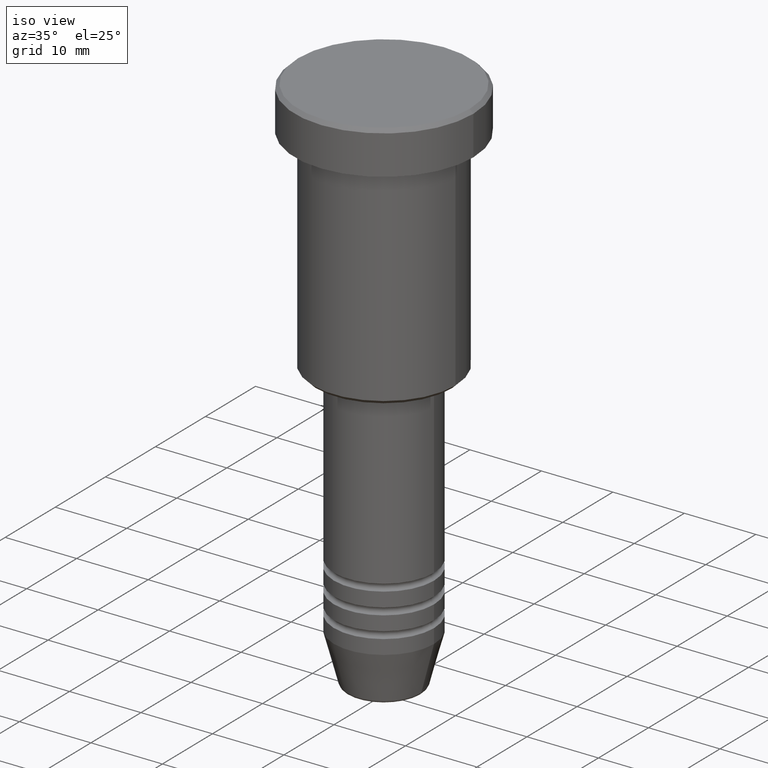
[diagram: clean part render]
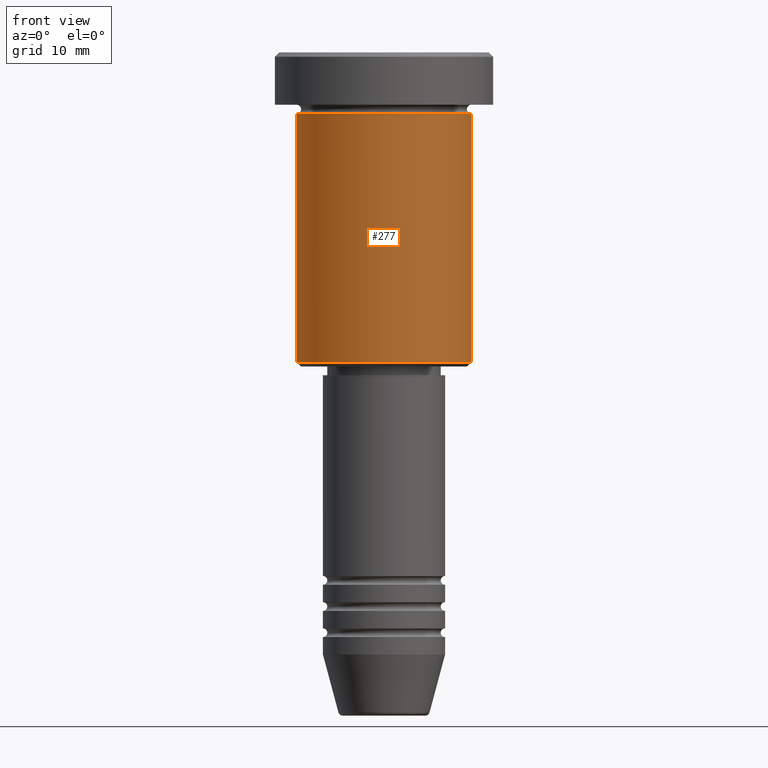
[diagram: tour spotlight — one face highlighted and labeled with its STEP entity id]
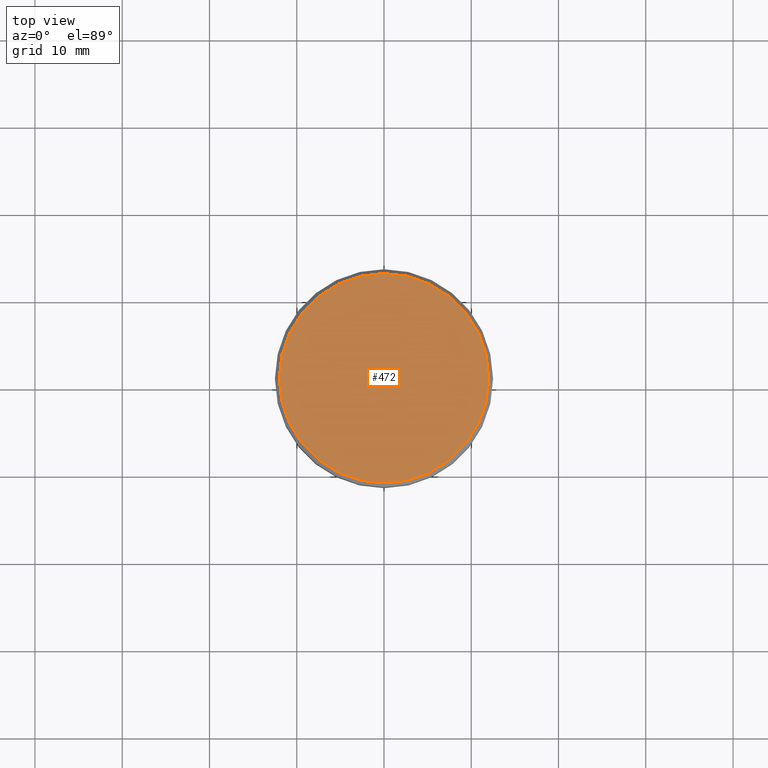
[diagram: tour spotlight — one face highlighted and labeled with its STEP entity id]
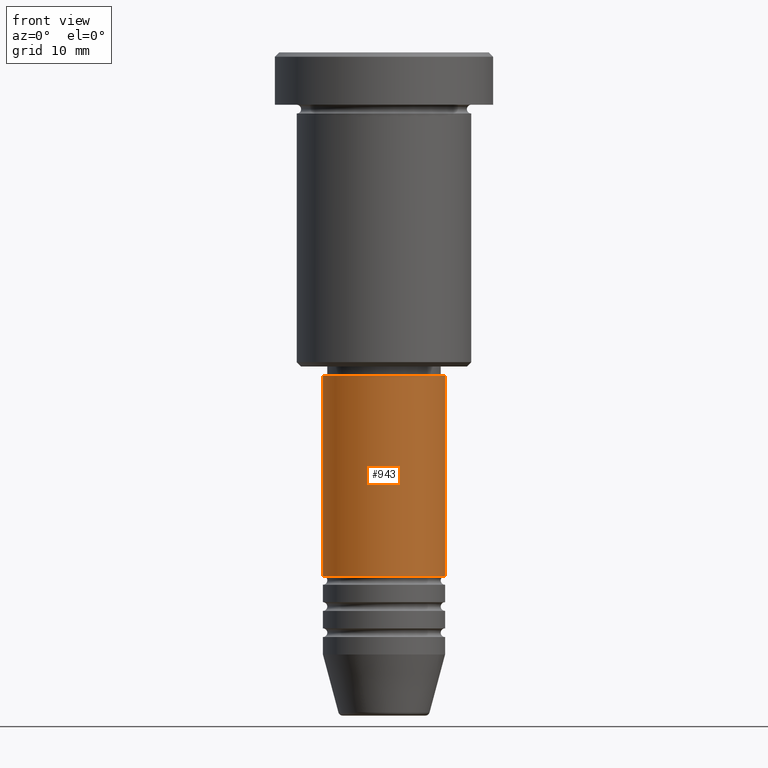
[diagram: tour spotlight — one face highlighted and labeled with its STEP entity id]
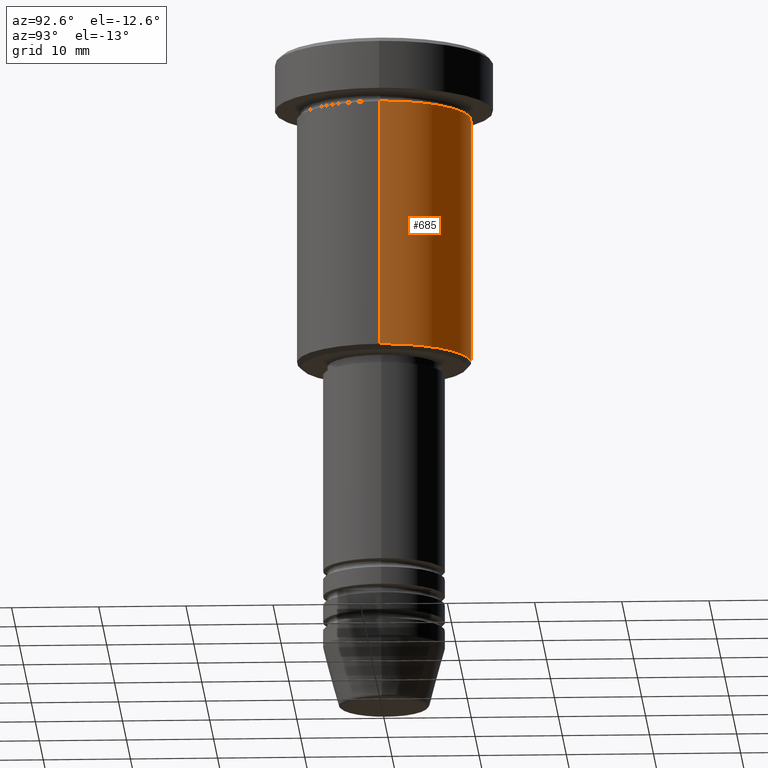
[diagram: tour spotlight — one face highlighted and labeled with its STEP entity id]
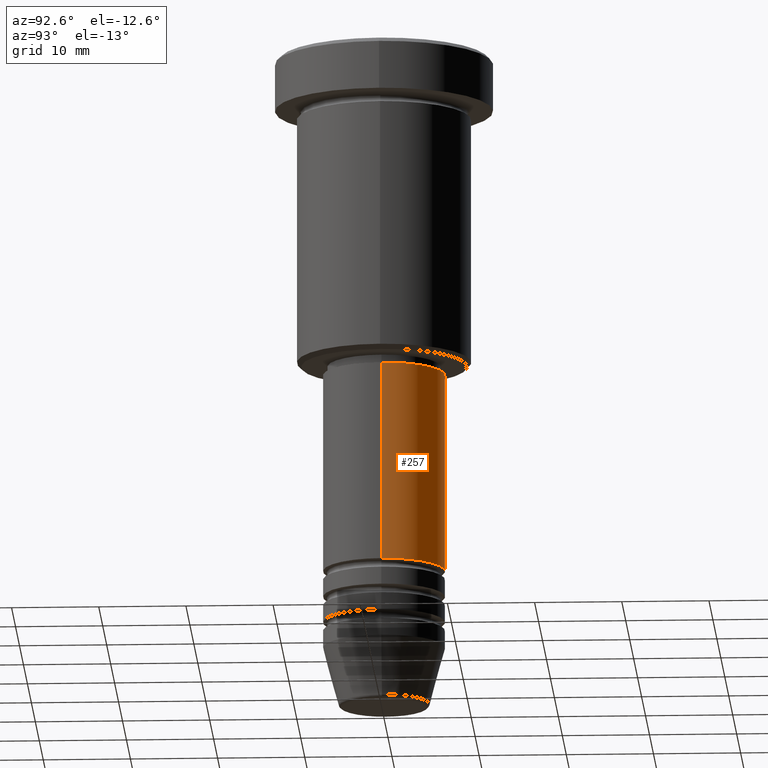
[diagram: tour spotlight — one face highlighted and labeled with its STEP entity id]
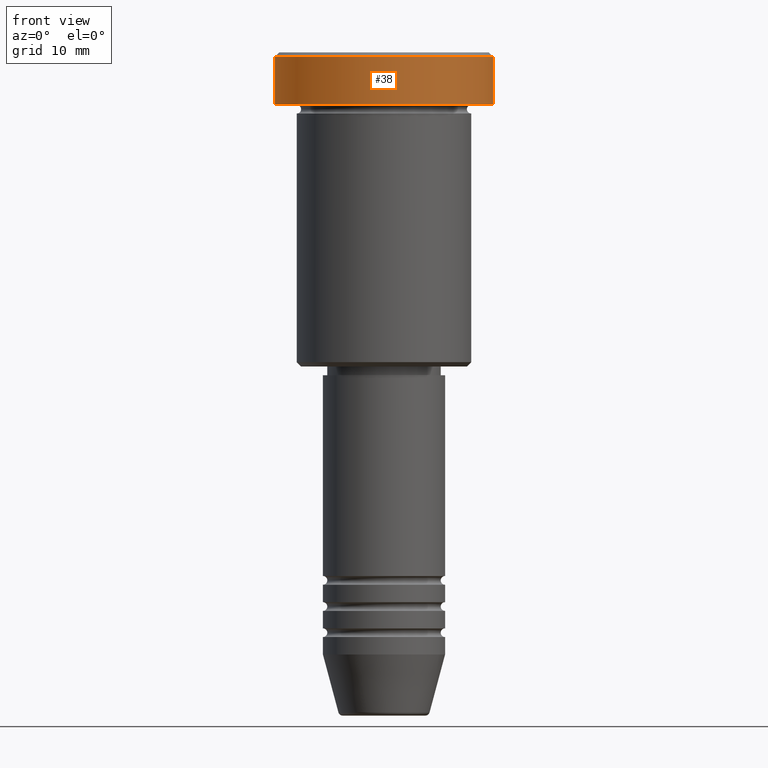
[diagram: tour spotlight — one face highlighted and labeled with its STEP entity id]
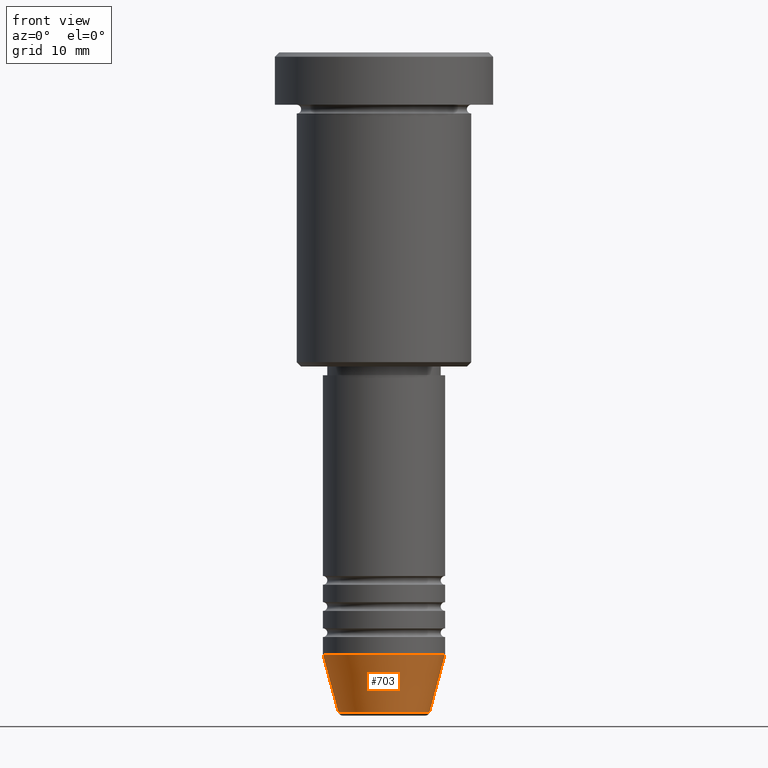
[diagram: tour spotlight — one face highlighted and labeled with its STEP entity id]
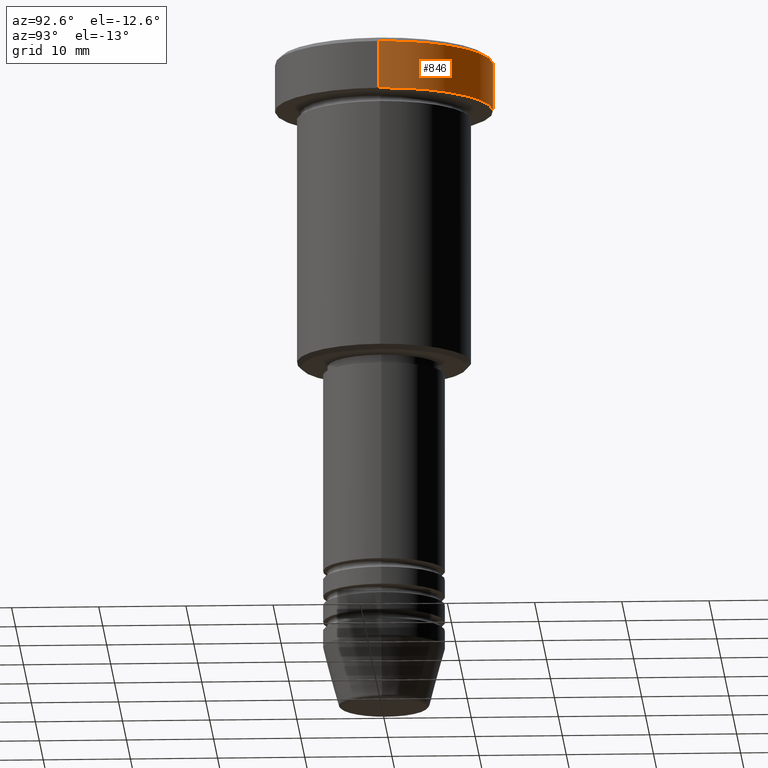
[diagram: tour spotlight — one face highlighted and labeled with its STEP entity id]
A machine part: a face-by-face anatomy tour. The part has 43 B-rep faces; the first image is the clean iso view, then the 8 largest visible faces are spotlighted one at a time (largest first), each with its STEP entity span.

Face 1 — front view, entity #277. In plain terms, the highlighted cylindrical surface (partial cylindrical patch) has radius 10 mm, axis along (-0, -0, 1).
Definition (entity closure, byte-faithful):
#8 = AXIS2_PLACEMENT_3D ( 'NONE', #691, #1047, #698 ) ;
#14 = LINE ( 'NONE', #667, #874 ) ;
#31 = CARTESIAN_POINT ( 'NONE',  ( -10.00000000000000000, 1.224646799147353256E-15, -6.999999999999996447 ) ) ;
#44 = AXIS2_PLACEMENT_3D ( 'NONE', #861, #1127, #401 ) ;
#70 = CIRCLE ( 'NONE', #44, 10.00000000000000000 ) ;
#80 = DIRECTION ( 'NONE',  ( 1.000000000000000000, 0.000000000000000000, 0.000000000000000000 ) ) ;
#82 = EDGE_CURVE ( 'NONE', #558, #357, #105, .T. ) ;
#105 = CIRCLE ( 'NONE', #8, 10.00000000000000000 ) ;
#162 = ORIENTED_EDGE ( 'NONE', *, *, #406, .T. ) ;
#277 = ADVANCED_FACE ( 'NONE', ( #644 ), #434, .T. ) ;
#357 = VERTEX_POINT ( 'NONE', #672 ) ;
#401 = DIRECTION ( 'NONE',  ( -1.000000000000000000, 0.000000000000000000, 0.000000000000000000 ) ) ;
#406 = EDGE_CURVE ( 'NONE', #1097, #357, #14, .T. ) ;
#434 = CYLINDRICAL_SURFACE ( 'NONE', #529, 10.00000000000000000 ) ;
#436 = ORIENTED_EDGE ( 'NONE', *, *, #783, .T. ) ;
#463 = ORIENTED_EDGE ( 'NONE', *, *, #82, .F. ) ;
#529 = AXIS2_PLACEMENT_3D ( 'NONE', #1001, #913, #80 ) ;
#558 = VERTEX_POINT ( 'NONE', #31 ) ;
#577 = CARTESIAN_POINT ( 'NONE',  ( -10.00000000000000000, 1.224646799147353256E-15, 0.000000000000000000 ) ) ;
#612 = VECTOR ( 'NONE', #863, 1000.000000000000000 ) ;
#644 = FACE_OUTER_BOUND ( 'NONE', #1064, .T. ) ;
#664 = VERTEX_POINT ( 'NONE', #1043 ) ;
#667 = CARTESIAN_POINT ( 'NONE',  ( 10.00000000000000000, 0.000000000000000000, 0.000000000000000000 ) ) ;
#672 = CARTESIAN_POINT ( 'NONE',  ( 10.00000000000000000, 0.000000000000000000, -6.999999999999996447 ) ) ;
#691 = CARTESIAN_POINT ( 'NONE',  ( 0.000000000000000000, 0.000000000000000000, -6.999999999999996447 ) ) ;
#698 = DIRECTION ( 'NONE',  ( 1.000000000000000000, 0.000000000000000000, 0.000000000000000000 ) ) ;
#783 = EDGE_CURVE ( 'NONE', #664, #1097, #70, .T. ) ;
#796 = ORIENTED_EDGE ( 'NONE', *, *, #937, .F. ) ;
#861 = CARTESIAN_POINT ( 'NONE',  ( 0.000000000000000000, 0.000000000000000000, -35.50000000000000711 ) ) ;
#863 = DIRECTION ( 'NONE',  ( -0.000000000000000000, -0.000000000000000000, 1.000000000000000000 ) ) ;
#874 = VECTOR ( 'NONE', #1015, 1000.000000000000000 ) ;
#888 = LINE ( 'NONE', #577, #612 ) ;
#913 = DIRECTION ( 'NONE',  ( -0.000000000000000000, -0.000000000000000000, 1.000000000000000000 ) ) ;
#937 = EDGE_CURVE ( 'NONE', #664, #558, #888, .T. ) ;
#1001 = CARTESIAN_POINT ( 'NONE',  ( 0.000000000000000000, 0.000000000000000000, 0.000000000000000000 ) ) ;
#1015 = DIRECTION ( 'NONE',  ( -0.000000000000000000, -0.000000000000000000, 1.000000000000000000 ) ) ;
#1038 = CARTESIAN_POINT ( 'NONE',  ( 10.00000000000000000, 0.000000000000000000, -35.50000000000000711 ) ) ;
#1043 = CARTESIAN_POINT ( 'NONE',  ( -10.00000000000000000, 1.224646799147353256E-15, -35.50000000000000711 ) ) ;
#1047 = DIRECTION ( 'NONE',  ( -0.000000000000000000, -0.000000000000000000, 1.000000000000000000 ) ) ;
#1064 = EDGE_LOOP ( 'NONE', ( #796, #436, #162, #463 ) ) ;
#1097 = VERTEX_POINT ( 'NONE', #1038 ) ;
#1127 = DIRECTION ( 'NONE',  ( -0.000000000000000000, -0.000000000000000000, 1.000000000000000000 ) ) ;

Face 2 — top view, entity #472. In plain terms, the highlighted planar face has unit normal (0, -0, 1).
Definition (entity closure, byte-faithful):
#63 = CARTESIAN_POINT ( 'NONE',  ( -11.99999999999999645, 0.000000000000000000, 0.000000000000000000 ) ) ;
#109 = CARTESIAN_POINT ( 'NONE',  ( 0.000000000000000000, 0.000000000000000000, 0.000000000000000000 ) ) ;
#123 = DIRECTION ( 'NONE',  ( 1.000000000000000000, 0.000000000000000000, 0.000000000000000000 ) ) ;
#152 = CARTESIAN_POINT ( 'NONE',  ( 0.000000000000000000, 0.000000000000000000, 0.000000000000000000 ) ) ;
#172 = AXIS2_PLACEMENT_3D ( 'NONE', #404, #1131, #123 ) ;
#206 = AXIS2_PLACEMENT_3D ( 'NONE', #109, #1027, #576 ) ;
#213 = PLANE ( 'NONE',  #206 ) ;
#349 = EDGE_LOOP ( 'NONE', ( #403, #957 ) ) ;
#403 = ORIENTED_EDGE ( 'NONE', *, *, #983, .T. ) ;
#404 = CARTESIAN_POINT ( 'NONE',  ( 0.000000000000000000, 0.000000000000000000, 0.000000000000000000 ) ) ;
#429 = AXIS2_PLACEMENT_3D ( 'NONE', #152, #860, #677 ) ;
#472 = ADVANCED_FACE ( 'NONE', ( #840 ), #213, .T. ) ;
#576 = DIRECTION ( 'NONE',  ( 1.000000000000000000, 0.000000000000000000, 0.000000000000000000 ) ) ;
#597 = EDGE_CURVE ( 'NONE', #969, #1068, #945, .T. ) ;
#677 = DIRECTION ( 'NONE',  ( 1.000000000000000000, 0.000000000000000000, 0.000000000000000000 ) ) ;
#840 = FACE_OUTER_BOUND ( 'NONE', #349, .T. ) ;
#860 = DIRECTION ( 'NONE',  ( -0.000000000000000000, -0.000000000000000000, 1.000000000000000000 ) ) ;
#945 = CIRCLE ( 'NONE', #429, 11.99999999999999645 ) ;
#957 = ORIENTED_EDGE ( 'NONE', *, *, #597, .T. ) ;
#969 = VERTEX_POINT ( 'NONE', #971 ) ;
#971 = CARTESIAN_POINT ( 'NONE',  ( 11.99999999999999645, 1.500192328955507537E-15, 0.000000000000000000 ) ) ;
#983 = EDGE_CURVE ( 'NONE', #1068, #969, #1081, .T. ) ;
#1027 = DIRECTION ( 'NONE',  ( 0.000000000000000000, -0.000000000000000000, 1.000000000000000000 ) ) ;
#1068 = VERTEX_POINT ( 'NONE', #63 ) ;
#1081 = CIRCLE ( 'NONE', #172, 11.99999999999999645 ) ;
#1131 = DIRECTION ( 'NONE',  ( -0.000000000000000000, -0.000000000000000000, 1.000000000000000000 ) ) ;

Face 3 — front view, entity #943. In plain terms, the highlighted cylindrical surface (partial cylindrical patch) has radius 7 mm, axis along (-0, -0, 1).
Definition (entity closure, byte-faithful):
#27 = DIRECTION ( 'NONE',  ( -0.000000000000000000, -0.000000000000000000, 1.000000000000000000 ) ) ;
#45 = CARTESIAN_POINT ( 'NONE',  ( 0.000000000000000000, 0.000000000000000000, -37.00000000000000711 ) ) ;
#103 = CARTESIAN_POINT ( 'NONE',  ( -7.000000000000000000, 8.572527594031473190E-16, -37.00000000000000711 ) ) ;
#143 = DIRECTION ( 'NONE',  ( 1.000000000000000000, 0.000000000000000000, 0.000000000000000000 ) ) ;
#167 = AXIS2_PLACEMENT_3D ( 'NONE', #45, #965, #143 ) ;
#193 = AXIS2_PLACEMENT_3D ( 'NONE', #322, #27, #219 ) ;
#200 = VERTEX_POINT ( 'NONE', #544 ) ;
#219 = DIRECTION ( 'NONE',  ( 1.000000000000000000, 0.000000000000000000, 0.000000000000000000 ) ) ;
#232 = EDGE_LOOP ( 'NONE', ( #435, #750, #415, #624 ) ) ;
#237 = FACE_OUTER_BOUND ( 'NONE', #232, .T. ) ;
#268 = AXIS2_PLACEMENT_3D ( 'NONE', #432, #803, #343 ) ;
#280 = CIRCLE ( 'NONE', #167, 7.000000000000000000 ) ;
#289 = CARTESIAN_POINT ( 'NONE',  ( -7.000000000000000000, 8.572527594031473190E-16, 0.000000000000000000 ) ) ;
#300 = EDGE_CURVE ( 'NONE', #998, #458, #718, .T. ) ;
#315 = CARTESIAN_POINT ( 'NONE',  ( 7.000000000000000000, 0.000000000000000000, -59.99999999999998579 ) ) ;
#322 = CARTESIAN_POINT ( 'NONE',  ( 0.000000000000000000, 0.000000000000000000, 0.000000000000000000 ) ) ;
#343 = DIRECTION ( 'NONE',  ( 1.000000000000000000, 0.000000000000000000, 0.000000000000000000 ) ) ;
#356 = DIRECTION ( 'NONE',  ( -0.000000000000000000, -0.000000000000000000, 1.000000000000000000 ) ) ;
#376 = EDGE_CURVE ( 'NONE', #200, #457, #1096, .T. ) ;
#384 = VECTOR ( 'NONE', #356, 1000.000000000000000 ) ;
#415 = ORIENTED_EDGE ( 'NONE', *, *, #300, .T. ) ;
#432 = CARTESIAN_POINT ( 'NONE',  ( 0.000000000000000000, 0.000000000000000000, -59.99999999999998579 ) ) ;
#435 = ORIENTED_EDGE ( 'NONE', *, *, #376, .F. ) ;
#457 = VERTEX_POINT ( 'NONE', #103 ) ;
#458 = VERTEX_POINT ( 'NONE', #473 ) ;
#473 = CARTESIAN_POINT ( 'NONE',  ( 7.000000000000000000, 0.000000000000000000, -37.00000000000000711 ) ) ;
#481 = CYLINDRICAL_SURFACE ( 'NONE', #193, 7.000000000000000000 ) ;
#515 = EDGE_CURVE ( 'NONE', #457, #458, #280, .T. ) ;
#544 = CARTESIAN_POINT ( 'NONE',  ( -7.000000000000000000, 8.572527594031473190E-16, -59.99999999999998579 ) ) ;
#624 = ORIENTED_EDGE ( 'NONE', *, *, #515, .F. ) ;
#718 = LINE ( 'NONE', #1169, #384 ) ;
#750 = ORIENTED_EDGE ( 'NONE', *, *, #843, .T. ) ;
#774 = CIRCLE ( 'NONE', #268, 7.000000000000000000 ) ;
#803 = DIRECTION ( 'NONE',  ( -0.000000000000000000, -0.000000000000000000, 1.000000000000000000 ) ) ;
#843 = EDGE_CURVE ( 'NONE', #200, #998, #774, .T. ) ;
#940 = DIRECTION ( 'NONE',  ( -0.000000000000000000, -0.000000000000000000, 1.000000000000000000 ) ) ;
#943 = ADVANCED_FACE ( 'NONE', ( #237 ), #481, .T. ) ;
#965 = DIRECTION ( 'NONE',  ( -0.000000000000000000, -0.000000000000000000, 1.000000000000000000 ) ) ;
#998 = VERTEX_POINT ( 'NONE', #315 ) ;
#1096 = LINE ( 'NONE', #289, #1106 ) ;
#1106 = VECTOR ( 'NONE', #940, 1000.000000000000000 ) ;
#1169 = CARTESIAN_POINT ( 'NONE',  ( 7.000000000000000000, 0.000000000000000000, 0.000000000000000000 ) ) ;

Face 4 — auxiliary view, entity #685. In plain terms, the highlighted cylindrical surface (partial cylindrical patch) has radius 10 mm, axis along (-0, -0, 1).
Definition (entity closure, byte-faithful):
#14 = LINE ( 'NONE', #667, #874 ) ;
#30 = FACE_OUTER_BOUND ( 'NONE', #96, .T. ) ;
#31 = CARTESIAN_POINT ( 'NONE',  ( -10.00000000000000000, 1.224646799147353256E-15, -6.999999999999996447 ) ) ;
#36 = DIRECTION ( 'NONE',  ( -0.000000000000000000, -0.000000000000000000, 1.000000000000000000 ) ) ;
#84 = DIRECTION ( 'NONE',  ( -1.000000000000000000, 0.000000000000000000, 0.000000000000000000 ) ) ;
#96 = EDGE_LOOP ( 'NONE', ( #824, #1160, #887, #694 ) ) ;
#178 = CARTESIAN_POINT ( 'NONE',  ( 0.000000000000000000, 0.000000000000000000, -35.50000000000000711 ) ) ;
#215 = DIRECTION ( 'NONE',  ( 1.000000000000000000, 0.000000000000000000, 0.000000000000000000 ) ) ;
#351 = DIRECTION ( 'NONE',  ( -0.000000000000000000, -0.000000000000000000, 1.000000000000000000 ) ) ;
#357 = VERTEX_POINT ( 'NONE', #672 ) ;
#392 = CYLINDRICAL_SURFACE ( 'NONE', #611, 10.00000000000000000 ) ;
#406 = EDGE_CURVE ( 'NONE', #1097, #357, #14, .T. ) ;
#482 = AXIS2_PLACEMENT_3D ( 'NONE', #178, #351, #84 ) ;
#531 = AXIS2_PLACEMENT_3D ( 'NONE', #613, #973, #215 ) ;
#558 = VERTEX_POINT ( 'NONE', #31 ) ;
#570 = CIRCLE ( 'NONE', #482, 10.00000000000000000 ) ;
#577 = CARTESIAN_POINT ( 'NONE',  ( -10.00000000000000000, 1.224646799147353256E-15, 0.000000000000000000 ) ) ;
#611 = AXIS2_PLACEMENT_3D ( 'NONE', #1113, #36, #1123 ) ;
#612 = VECTOR ( 'NONE', #863, 1000.000000000000000 ) ;
#613 = CARTESIAN_POINT ( 'NONE',  ( 0.000000000000000000, 0.000000000000000000, -6.999999999999996447 ) ) ;
#642 = EDGE_CURVE ( 'NONE', #357, #558, #970, .T. ) ;
#664 = VERTEX_POINT ( 'NONE', #1043 ) ;
#667 = CARTESIAN_POINT ( 'NONE',  ( 10.00000000000000000, 0.000000000000000000, 0.000000000000000000 ) ) ;
#672 = CARTESIAN_POINT ( 'NONE',  ( 10.00000000000000000, 0.000000000000000000, -6.999999999999996447 ) ) ;
#685 = ADVANCED_FACE ( 'NONE', ( #30 ), #392, .T. ) ;
#694 = ORIENTED_EDGE ( 'NONE', *, *, #406, .F. ) ;
#824 = ORIENTED_EDGE ( 'NONE', *, *, #1028, .T. ) ;
#863 = DIRECTION ( 'NONE',  ( -0.000000000000000000, -0.000000000000000000, 1.000000000000000000 ) ) ;
#874 = VECTOR ( 'NONE', #1015, 1000.000000000000000 ) ;
#887 = ORIENTED_EDGE ( 'NONE', *, *, #642, .F. ) ;
#888 = LINE ( 'NONE', #577, #612 ) ;
#937 = EDGE_CURVE ( 'NONE', #664, #558, #888, .T. ) ;
#970 = CIRCLE ( 'NONE', #531, 10.00000000000000000 ) ;
#973 = DIRECTION ( 'NONE',  ( -0.000000000000000000, -0.000000000000000000, 1.000000000000000000 ) ) ;
#1015 = DIRECTION ( 'NONE',  ( -0.000000000000000000, -0.000000000000000000, 1.000000000000000000 ) ) ;
#1028 = EDGE_CURVE ( 'NONE', #1097, #664, #570, .T. ) ;
#1038 = CARTESIAN_POINT ( 'NONE',  ( 10.00000000000000000, 0.000000000000000000, -35.50000000000000711 ) ) ;
#1043 = CARTESIAN_POINT ( 'NONE',  ( -10.00000000000000000, 1.224646799147353256E-15, -35.50000000000000711 ) ) ;
#1097 = VERTEX_POINT ( 'NONE', #1038 ) ;
#1113 = CARTESIAN_POINT ( 'NONE',  ( 0.000000000000000000, 0.000000000000000000, 0.000000000000000000 ) ) ;
#1123 = DIRECTION ( 'NONE',  ( 1.000000000000000000, 0.000000000000000000, 0.000000000000000000 ) ) ;
#1160 = ORIENTED_EDGE ( 'NONE', *, *, #937, .T. ) ;

Face 5 — auxiliary view, entity #257. In plain terms, the highlighted cylindrical surface (partial cylindrical patch) has radius 7 mm, axis along (-0, -0, 1).
Definition (entity closure, byte-faithful):
#12 = AXIS2_PLACEMENT_3D ( 'NONE', #648, #202, #488 ) ;
#57 = EDGE_LOOP ( 'NONE', ( #368, #736, #137, #323 ) ) ;
#76 = CARTESIAN_POINT ( 'NONE',  ( 0.000000000000000000, 0.000000000000000000, 0.000000000000000000 ) ) ;
#103 = CARTESIAN_POINT ( 'NONE',  ( -7.000000000000000000, 8.572527594031473190E-16, -37.00000000000000711 ) ) ;
#137 = ORIENTED_EDGE ( 'NONE', *, *, #1082, .F. ) ;
#165 = AXIS2_PLACEMENT_3D ( 'NONE', #76, #655, #1162 ) ;
#180 = FACE_OUTER_BOUND ( 'NONE', #57, .T. ) ;
#200 = VERTEX_POINT ( 'NONE', #544 ) ;
#202 = DIRECTION ( 'NONE',  ( -0.000000000000000000, -0.000000000000000000, 1.000000000000000000 ) ) ;
#225 = AXIS2_PLACEMENT_3D ( 'NONE', #1144, #793, #260 ) ;
#257 = ADVANCED_FACE ( 'NONE', ( #180 ), #827, .T. ) ;
#260 = DIRECTION ( 'NONE',  ( 1.000000000000000000, 0.000000000000000000, 0.000000000000000000 ) ) ;
#284 = CIRCLE ( 'NONE', #12, 7.000000000000000000 ) ;
#289 = CARTESIAN_POINT ( 'NONE',  ( -7.000000000000000000, 8.572527594031473190E-16, 0.000000000000000000 ) ) ;
#300 = EDGE_CURVE ( 'NONE', #998, #458, #718, .T. ) ;
#315 = CARTESIAN_POINT ( 'NONE',  ( 7.000000000000000000, 0.000000000000000000, -59.99999999999998579 ) ) ;
#323 = ORIENTED_EDGE ( 'NONE', *, *, #300, .F. ) ;
#356 = DIRECTION ( 'NONE',  ( -0.000000000000000000, -0.000000000000000000, 1.000000000000000000 ) ) ;
#368 = ORIENTED_EDGE ( 'NONE', *, *, #1000, .T. ) ;
#376 = EDGE_CURVE ( 'NONE', #200, #457, #1096, .T. ) ;
#384 = VECTOR ( 'NONE', #356, 1000.000000000000000 ) ;
#457 = VERTEX_POINT ( 'NONE', #103 ) ;
#458 = VERTEX_POINT ( 'NONE', #473 ) ;
#473 = CARTESIAN_POINT ( 'NONE',  ( 7.000000000000000000, 0.000000000000000000, -37.00000000000000711 ) ) ;
#488 = DIRECTION ( 'NONE',  ( 1.000000000000000000, 0.000000000000000000, 0.000000000000000000 ) ) ;
#544 = CARTESIAN_POINT ( 'NONE',  ( -7.000000000000000000, 8.572527594031473190E-16, -59.99999999999998579 ) ) ;
#648 = CARTESIAN_POINT ( 'NONE',  ( 0.000000000000000000, 0.000000000000000000, -37.00000000000000711 ) ) ;
#655 = DIRECTION ( 'NONE',  ( -0.000000000000000000, -0.000000000000000000, 1.000000000000000000 ) ) ;
#718 = LINE ( 'NONE', #1169, #384 ) ;
#736 = ORIENTED_EDGE ( 'NONE', *, *, #376, .T. ) ;
#793 = DIRECTION ( 'NONE',  ( -0.000000000000000000, -0.000000000000000000, 1.000000000000000000 ) ) ;
#827 = CYLINDRICAL_SURFACE ( 'NONE', #165, 7.000000000000000000 ) ;
#940 = DIRECTION ( 'NONE',  ( -0.000000000000000000, -0.000000000000000000, 1.000000000000000000 ) ) ;
#998 = VERTEX_POINT ( 'NONE', #315 ) ;
#1000 = EDGE_CURVE ( 'NONE', #998, #200, #1175, .T. ) ;
#1082 = EDGE_CURVE ( 'NONE', #458, #457, #284, .T. ) ;
#1096 = LINE ( 'NONE', #289, #1106 ) ;
#1106 = VECTOR ( 'NONE', #940, 1000.000000000000000 ) ;
#1144 = CARTESIAN_POINT ( 'NONE',  ( 0.000000000000000000, 0.000000000000000000, -59.99999999999998579 ) ) ;
#1162 = DIRECTION ( 'NONE',  ( 1.000000000000000000, 0.000000000000000000, 0.000000000000000000 ) ) ;
#1169 = CARTESIAN_POINT ( 'NONE',  ( 7.000000000000000000, 0.000000000000000000, 0.000000000000000000 ) ) ;
#1175 = CIRCLE ( 'NONE', #225, 7.000000000000000000 ) ;

Face 6 — front view, entity #38. In plain terms, the highlighted cylindrical surface (partial cylindrical patch) has radius 12.5 mm, axis along (-0, -0, 1).
Definition (entity closure, byte-faithful):
#1 = CARTESIAN_POINT ( 'NONE',  ( -12.50000000000000000, 1.530808498934191521E-15, -0.4999999999999987232 ) ) ;
#32 = DIRECTION ( 'NONE',  ( 1.000000000000000000, 0.000000000000000000, 0.000000000000000000 ) ) ;
#38 = ADVANCED_FACE ( 'NONE', ( #201 ), #1017, .T. ) ;
#49 = VERTEX_POINT ( 'NONE', #155 ) ;
#90 = VECTOR ( 'NONE', #959, 1000.000000000000000 ) ;
#155 = CARTESIAN_POINT ( 'NONE',  ( 12.50000000000000000, 0.000000000000000000, -0.4999999999999987232 ) ) ;
#201 = FACE_OUTER_BOUND ( 'NONE', #505, .T. ) ;
#230 = VERTEX_POINT ( 'NONE', #1 ) ;
#249 = CARTESIAN_POINT ( 'NONE',  ( 0.000000000000000000, 0.000000000000000000, -0.4999999999999987232 ) ) ;
#266 = AXIS2_PLACEMENT_3D ( 'NONE', #563, #383, #939 ) ;
#274 = EDGE_CURVE ( 'NONE', #444, #49, #535, .T. ) ;
#287 = ORIENTED_EDGE ( 'NONE', *, *, #574, .F. ) ;
#310 = CARTESIAN_POINT ( 'NONE',  ( -12.50000000000000000, 1.530808498934191521E-15, 0.000000000000000000 ) ) ;
#311 = DIRECTION ( 'NONE',  ( 0.000000000000000000, 0.000000000000000000, -1.000000000000000000 ) ) ;
#337 = AXIS2_PLACEMENT_3D ( 'NONE', #249, #311, #32 ) ;
#367 = CARTESIAN_POINT ( 'NONE',  ( 12.50000000000000000, 0.000000000000000000, -5.999999999999996447 ) ) ;
#383 = DIRECTION ( 'NONE',  ( -0.000000000000000000, -0.000000000000000000, 1.000000000000000000 ) ) ;
#444 = VERTEX_POINT ( 'NONE', #367 ) ;
#451 = DIRECTION ( 'NONE',  ( -0.000000000000000000, -0.000000000000000000, 1.000000000000000000 ) ) ;
#505 = EDGE_LOOP ( 'NONE', ( #287, #747, #776, #1048 ) ) ;
#525 = CARTESIAN_POINT ( 'NONE',  ( 0.000000000000000000, 0.000000000000000000, -5.999999999999996447 ) ) ;
#535 = LINE ( 'NONE', #637, #1076 ) ;
#563 = CARTESIAN_POINT ( 'NONE',  ( 0.000000000000000000, 0.000000000000000000, 0.000000000000000000 ) ) ;
#574 = EDGE_CURVE ( 'NONE', #1143, #230, #871, .T. ) ;
#637 = CARTESIAN_POINT ( 'NONE',  ( 12.50000000000000000, 0.000000000000000000, 0.000000000000000000 ) ) ;
#747 = ORIENTED_EDGE ( 'NONE', *, *, #834, .T. ) ;
#776 = ORIENTED_EDGE ( 'NONE', *, *, #274, .T. ) ;
#834 = EDGE_CURVE ( 'NONE', #1143, #444, #1093, .T. ) ;
#837 = AXIS2_PLACEMENT_3D ( 'NONE', #525, #1178, #1158 ) ;
#870 = CARTESIAN_POINT ( 'NONE',  ( -12.50000000000000000, 1.530808498934191521E-15, -5.999999999999996447 ) ) ;
#871 = LINE ( 'NONE', #310, #90 ) ;
#939 = DIRECTION ( 'NONE',  ( 1.000000000000000000, 0.000000000000000000, 0.000000000000000000 ) ) ;
#959 = DIRECTION ( 'NONE',  ( -0.000000000000000000, -0.000000000000000000, 1.000000000000000000 ) ) ;
#1017 = CYLINDRICAL_SURFACE ( 'NONE', #266, 12.50000000000000000 ) ;
#1048 = ORIENTED_EDGE ( 'NONE', *, *, #1091, .T. ) ;
#1067 = CIRCLE ( 'NONE', #337, 12.50000000000000000 ) ;
#1076 = VECTOR ( 'NONE', #451, 1000.000000000000000 ) ;
#1091 = EDGE_CURVE ( 'NONE', #49, #230, #1067, .T. ) ;
#1093 = CIRCLE ( 'NONE', #837, 12.50000000000000000 ) ;
#1143 = VERTEX_POINT ( 'NONE', #870 ) ;
#1158 = DIRECTION ( 'NONE',  ( 1.000000000000000000, 0.000000000000000000, 0.000000000000000000 ) ) ;
#1178 = DIRECTION ( 'NONE',  ( -0.000000000000000000, -0.000000000000000000, 1.000000000000000000 ) ) ;

Face 7 — front view, entity #703. In plain terms, the highlighted conical surface has half-angle 15 deg.
Definition (entity closure, byte-faithful):
#51 = DIRECTION ( 'NONE',  ( -0.2588190451025214056, 3.169619151431772953E-17, 0.9659258262890680902 ) ) ;
#59 = EDGE_CURVE ( 'NONE', #735, #841, #866, .T. ) ;
#159 = CARTESIAN_POINT ( 'NONE',  ( 0.000000000000000000, 0.000000000000000000, -69.00000000000000000 ) ) ;
#174 = DIRECTION ( 'NONE',  ( 1.000000000000000000, 0.000000000000000000, 0.000000000000000000 ) ) ;
#190 = AXIS2_PLACEMENT_3D ( 'NONE', #278, #652, #1012 ) ;
#278 = CARTESIAN_POINT ( 'NONE',  ( 0.000000000000000000, 0.000000000000000000, -69.00000000000000000 ) ) ;
#334 = AXIS2_PLACEMENT_3D ( 'NONE', #159, #902, #174 ) ;
#407 = ORIENTED_EDGE ( 'NONE', *, *, #59, .T. ) ;
#450 = CONICAL_SURFACE ( 'NONE', #334, 7.000000000000000000, 0.2617993877991501295 ) ;
#460 = CARTESIAN_POINT ( 'NONE',  ( 0.000000000000000000, 0.000000000000000000, -75.62940952255127058 ) ) ;
#464 = VERTEX_POINT ( 'NONE', #942 ) ;
#527 = ORIENTED_EDGE ( 'NONE', *, *, #726, .F. ) ;
#536 = ORIENTED_EDGE ( 'NONE', *, *, #617, .F. ) ;
#583 = CARTESIAN_POINT ( 'NONE',  ( 5.223655072137187716, 0.000000000000000000, -75.62940952255127058 ) ) ;
#615 = CARTESIAN_POINT ( 'NONE',  ( 7.000000000000000000, 0.000000000000000000, -69.00000000000000000 ) ) ;
#616 = ORIENTED_EDGE ( 'NONE', *, *, #1025, .T. ) ;
#617 = EDGE_CURVE ( 'NONE', #464, #656, #1037, .T. ) ;
#652 = DIRECTION ( 'NONE',  ( -0.000000000000000000, -0.000000000000000000, 1.000000000000000000 ) ) ;
#654 = AXIS2_PLACEMENT_3D ( 'NONE', #460, #1095, #1100 ) ;
#656 = VERTEX_POINT ( 'NONE', #1139 ) ;
#703 = ADVANCED_FACE ( 'NONE', ( #801 ), #450, .T. ) ;
#707 = VECTOR ( 'NONE', #961, 1000.000000000000000 ) ;
#726 = EDGE_CURVE ( 'NONE', #656, #841, #1066, .T. ) ;
#735 = VERTEX_POINT ( 'NONE', #583 ) ;
#743 = VECTOR ( 'NONE', #51, 1000.000000000000000 ) ;
#801 = FACE_OUTER_BOUND ( 'NONE', #1112, .T. ) ;
#841 = VERTEX_POINT ( 'NONE', #1005 ) ;
#856 = CIRCLE ( 'NONE', #654, 5.223655072137187716 ) ;
#866 = LINE ( 'NONE', #615, #707 ) ;
#883 = CARTESIAN_POINT ( 'NONE',  ( -7.000000000000000000, 8.572527594031473190E-16, -69.00000000000000000 ) ) ;
#902 = DIRECTION ( 'NONE',  ( -0.000000000000000000, -0.000000000000000000, 1.000000000000000000 ) ) ;
#942 = CARTESIAN_POINT ( 'NONE',  ( -5.223655072137187716, 7.484830028987059188E-16, -75.62940952255127058 ) ) ;
#961 = DIRECTION ( 'NONE',  ( 0.2588190451025214056, 0.000000000000000000, 0.9659258262890680902 ) ) ;
#1005 = CARTESIAN_POINT ( 'NONE',  ( 7.000000000000000000, 0.000000000000000000, -69.00000000000000000 ) ) ;
#1012 = DIRECTION ( 'NONE',  ( 1.000000000000000000, 0.000000000000000000, 0.000000000000000000 ) ) ;
#1025 = EDGE_CURVE ( 'NONE', #464, #735, #856, .T. ) ;
#1037 = LINE ( 'NONE', #883, #743 ) ;
#1066 = CIRCLE ( 'NONE', #190, 7.000000000000000000 ) ;
#1095 = DIRECTION ( 'NONE',  ( -0.000000000000000000, -0.000000000000000000, 1.000000000000000000 ) ) ;
#1100 = DIRECTION ( 'NONE',  ( 1.000000000000000000, 0.000000000000000000, 0.000000000000000000 ) ) ;
#1112 = EDGE_LOOP ( 'NONE', ( #536, #616, #407, #527 ) ) ;
#1139 = CARTESIAN_POINT ( 'NONE',  ( -7.000000000000000000, 8.572527594031473190E-16, -69.00000000000000000 ) ) ;

Face 8 — auxiliary view, entity #846. In plain terms, the highlighted cylindrical surface (partial cylindrical patch) has radius 12.5 mm, axis along (-0, -0, 1).
Definition (entity closure, byte-faithful):
#1 = CARTESIAN_POINT ( 'NONE',  ( -12.50000000000000000, 1.530808498934191521E-15, -0.4999999999999987232 ) ) ;
#49 = VERTEX_POINT ( 'NONE', #155 ) ;
#90 = VECTOR ( 'NONE', #959, 1000.000000000000000 ) ;
#125 = EDGE_CURVE ( 'NONE', #230, #49, #1021, .T. ) ;
#155 = CARTESIAN_POINT ( 'NONE',  ( 12.50000000000000000, 0.000000000000000000, -0.4999999999999987232 ) ) ;
#168 = DIRECTION ( 'NONE',  ( 1.000000000000000000, 0.000000000000000000, 0.000000000000000000 ) ) ;
#208 = AXIS2_PLACEMENT_3D ( 'NONE', #627, #985, #168 ) ;
#230 = VERTEX_POINT ( 'NONE', #1 ) ;
#259 = CYLINDRICAL_SURFACE ( 'NONE', #208, 12.50000000000000000 ) ;
#274 = EDGE_CURVE ( 'NONE', #444, #49, #535, .T. ) ;
#299 = CARTESIAN_POINT ( 'NONE',  ( 0.000000000000000000, 0.000000000000000000, -5.999999999999996447 ) ) ;
#310 = CARTESIAN_POINT ( 'NONE',  ( -12.50000000000000000, 1.530808498934191521E-15, 0.000000000000000000 ) ) ;
#367 = CARTESIAN_POINT ( 'NONE',  ( 12.50000000000000000, 0.000000000000000000, -5.999999999999996447 ) ) ;
#381 = DIRECTION ( 'NONE',  ( -0.000000000000000000, -0.000000000000000000, 1.000000000000000000 ) ) ;
#440 = ORIENTED_EDGE ( 'NONE', *, *, #574, .T. ) ;
#444 = VERTEX_POINT ( 'NONE', #367 ) ;
#451 = DIRECTION ( 'NONE',  ( -0.000000000000000000, -0.000000000000000000, 1.000000000000000000 ) ) ;
#466 = EDGE_CURVE ( 'NONE', #444, #1143, #852, .T. ) ;
#477 = DIRECTION ( 'NONE',  ( 1.000000000000000000, 0.000000000000000000, 0.000000000000000000 ) ) ;
#501 = CARTESIAN_POINT ( 'NONE',  ( 0.000000000000000000, 0.000000000000000000, -0.4999999999999987232 ) ) ;
#535 = LINE ( 'NONE', #637, #1076 ) ;
#564 = AXIS2_PLACEMENT_3D ( 'NONE', #501, #779, #622 ) ;
#574 = EDGE_CURVE ( 'NONE', #1143, #230, #871, .T. ) ;
#622 = DIRECTION ( 'NONE',  ( 1.000000000000000000, 0.000000000000000000, 0.000000000000000000 ) ) ;
#627 = CARTESIAN_POINT ( 'NONE',  ( 0.000000000000000000, 0.000000000000000000, 0.000000000000000000 ) ) ;
#637 = CARTESIAN_POINT ( 'NONE',  ( 12.50000000000000000, 0.000000000000000000, 0.000000000000000000 ) ) ;
#708 = EDGE_LOOP ( 'NONE', ( #1074, #440, #922, #764 ) ) ;
#717 = FACE_OUTER_BOUND ( 'NONE', #708, .T. ) ;
#764 = ORIENTED_EDGE ( 'NONE', *, *, #274, .F. ) ;
#779 = DIRECTION ( 'NONE',  ( 0.000000000000000000, 0.000000000000000000, -1.000000000000000000 ) ) ;
#846 = ADVANCED_FACE ( 'NONE', ( #717 ), #259, .T. ) ;
#852 = CIRCLE ( 'NONE', #1150, 12.50000000000000000 ) ;
#870 = CARTESIAN_POINT ( 'NONE',  ( -12.50000000000000000, 1.530808498934191521E-15, -5.999999999999996447 ) ) ;
#871 = LINE ( 'NONE', #310, #90 ) ;
#922 = ORIENTED_EDGE ( 'NONE', *, *, #125, .T. ) ;
#959 = DIRECTION ( 'NONE',  ( -0.000000000000000000, -0.000000000000000000, 1.000000000000000000 ) ) ;
#985 = DIRECTION ( 'NONE',  ( -0.000000000000000000, -0.000000000000000000, 1.000000000000000000 ) ) ;
#1021 = CIRCLE ( 'NONE', #564, 12.50000000000000000 ) ;
#1074 = ORIENTED_EDGE ( 'NONE', *, *, #466, .T. ) ;
#1076 = VECTOR ( 'NONE', #451, 1000.000000000000000 ) ;
#1143 = VERTEX_POINT ( 'NONE', #870 ) ;
#1150 = AXIS2_PLACEMENT_3D ( 'NONE', #299, #381, #477 ) ;